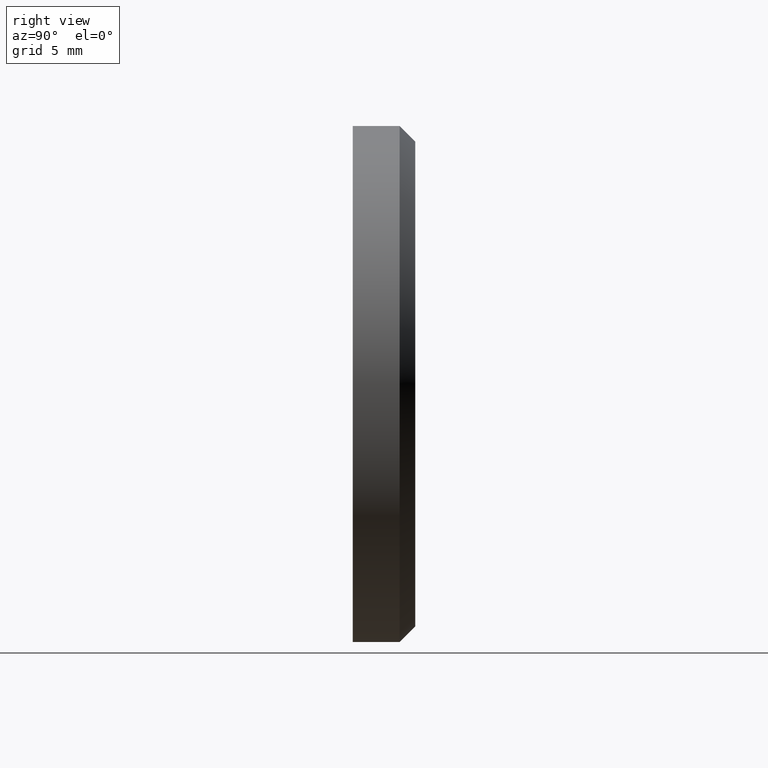
[diagram: clean part render]
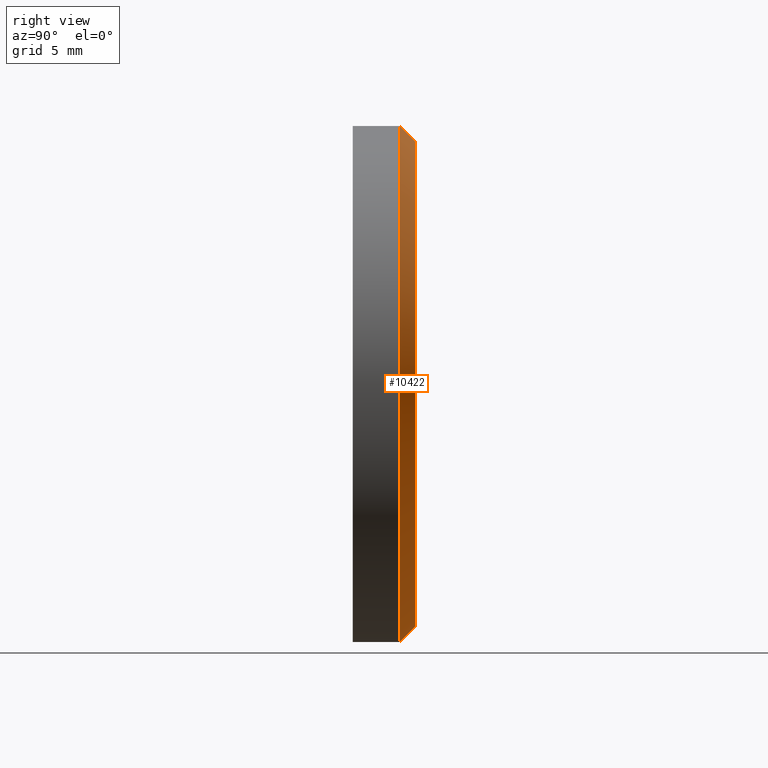
[diagram: same view with one face highlighted and labeled with its STEP entity id]
A machine part, right view. The second image highlights one B-rep face of the part: STEP entity #10422.
In plain terms, the highlighted conical surface has half-angle 45 deg.
Its self-contained STEP definition (entity closure, byte-faithful):
#34 = CARTESIAN_POINT ( 'NONE',  ( 0.000000000000000000, 0.9999999999999922284, 0.000000000000000000 ) ) ;
#460 = VECTOR ( 'NONE', #12190, 1000.000000000000114 ) ;
#707 = CARTESIAN_POINT ( 'NONE',  ( 2.020667218593133100E-15, 0.9999999999999922284, 16.50000000000000000 ) ) ;
#2034 = VERTEX_POINT ( 'NONE', #3483 ) ;
#2535 = CARTESIAN_POINT ( 'NONE',  ( 0.000000000000000000, 2.000000000000000000, -15.50000000000000000 ) ) ;
#2920 = AXIS2_PLACEMENT_3D ( 'NONE', #14281, #10688, #13165 ) ;
#3454 = ORIENTED_EDGE ( 'NONE', *, *, #11051, .F. ) ;
#3483 = CARTESIAN_POINT ( 'NONE',  ( 0.000000000000000000, 2.000000000000000000, -15.50000000000000000 ) ) ;
#3845 = FACE_OUTER_BOUND ( 'NONE', #8975, .T. ) ;
#4833 = VERTEX_POINT ( 'NONE', #10451 ) ;
#5310 = EDGE_CURVE ( 'NONE', #10124, #7832, #10177, .T. ) ;
#5944 = DIRECTION ( 'NONE',  ( 0.000000000000000000, 0.000000000000000000, 1.000000000000000000 ) ) ;
#5969 = AXIS2_PLACEMENT_3D ( 'NONE', #34, #14369, #5944 ) ;
#6124 = CIRCLE ( 'NONE', #11351, 15.50000000000000000 ) ;
#7788 = ORIENTED_EDGE ( 'NONE', *, *, #11316, .F. ) ;
#7832 = VERTEX_POINT ( 'NONE', #707 ) ;
#8932 = LINE ( 'NONE', #14742, #11793 ) ;
#8975 = EDGE_LOOP ( 'NONE', ( #3454, #12759, #12240, #7788 ) ) ;
#10124 = VERTEX_POINT ( 'NONE', #14463 ) ;
#10177 = CIRCLE ( 'NONE', #5969, 16.50000000000000000 ) ;
#10422 = ADVANCED_FACE ( 'NONE', ( #3845 ), #12380, .T. ) ;
#10451 = CARTESIAN_POINT ( 'NONE',  ( 1.959434878635765526E-15, 2.000000000000000000, 15.50000000000000000 ) ) ;
#10688 = DIRECTION ( 'NONE',  ( 0.000000000000000000, -1.000000000000000000, 0.000000000000000000 ) ) ;
#11051 = EDGE_CURVE ( 'NONE', #4833, #2034, #6124, .T. ) ;
#11316 = EDGE_CURVE ( 'NONE', #2034, #10124, #15029, .T. ) ;
#11351 = AXIS2_PLACEMENT_3D ( 'NONE', #15220, #11505, #13828 ) ;
#11505 = DIRECTION ( 'NONE',  ( 0.000000000000000000, 1.000000000000000000, 0.000000000000000000 ) ) ;
#11793 = VECTOR ( 'NONE', #14895, 1000.000000000000114 ) ;
#12190 = DIRECTION ( 'NONE',  ( 0.000000000000000000, -0.7071067811865500152, -0.7071067811865451302 ) ) ;
#12218 = EDGE_CURVE ( 'NONE', #4833, #7832, #8932, .T. ) ;
#12240 = ORIENTED_EDGE ( 'NONE', *, *, #5310, .F. ) ;
#12380 = CONICAL_SURFACE ( 'NONE', #2920, 15.50000000000000000, 0.7853981633974447263 ) ;
#12759 = ORIENTED_EDGE ( 'NONE', *, *, #12218, .T. ) ;
#13165 = DIRECTION ( 'NONE',  ( 0.000000000000000000, 0.000000000000000000, -1.000000000000000000 ) ) ;
#13828 = DIRECTION ( 'NONE',  ( 0.000000000000000000, 0.000000000000000000, 1.000000000000000000 ) ) ;
#14281 = CARTESIAN_POINT ( 'NONE',  ( 0.000000000000000000, 2.000000000000000000, 0.000000000000000000 ) ) ;
#14369 = DIRECTION ( 'NONE',  ( 0.000000000000000000, -1.000000000000000000, 0.000000000000000000 ) ) ;
#14463 = CARTESIAN_POINT ( 'NONE',  ( 0.000000000000000000, 0.9999999999999922284, -16.50000000000000000 ) ) ;
#14742 = CARTESIAN_POINT ( 'NONE',  ( 1.898202538678397557E-15, 2.000000000000000000, 15.50000000000000000 ) ) ;
#14895 = DIRECTION ( 'NONE',  ( 8.659560562354903276E-17, -0.7071067811865500152, 0.7071067811865451302 ) ) ;
#15029 = LINE ( 'NONE', #2535, #460 ) ;
#15220 = CARTESIAN_POINT ( 'NONE',  ( 0.000000000000000000, 2.000000000000000000, 0.000000000000000000 ) ) ;